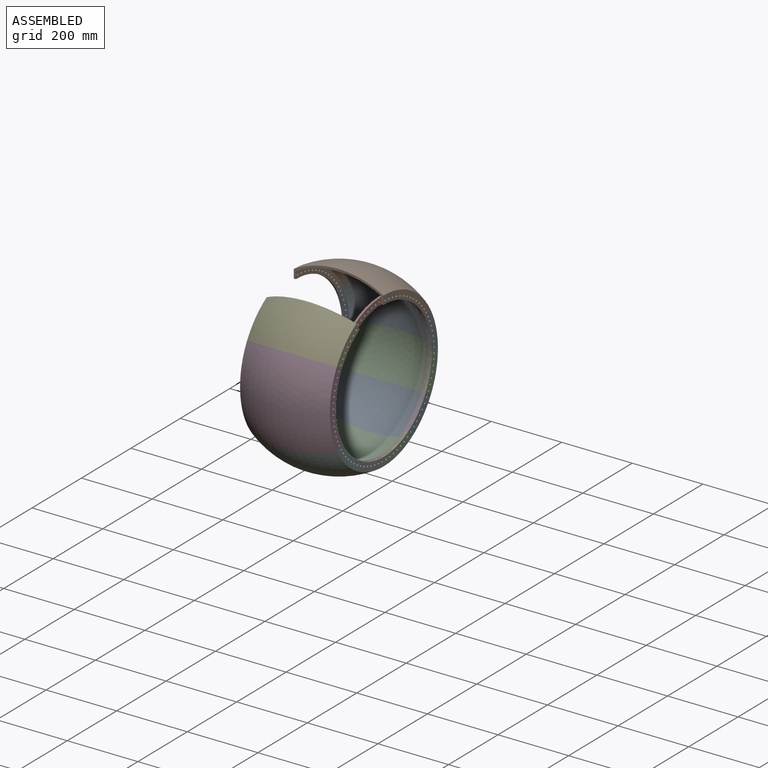
[diagram: assembled view]
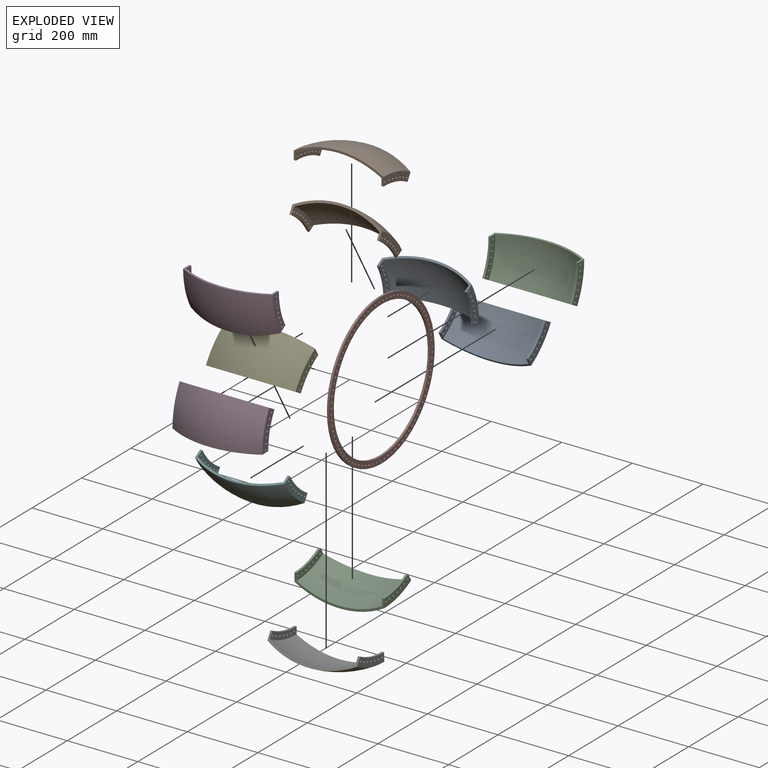
[diagram: exploded view]
GUIDED TOUR — MATED ASSEMBLY (Onshape document 5a2547cec210a63615275e33, AutoMate assembly 5a2547cec210a63615275e33_327c1e1383b4cbb6d8f0e685_7b2ea84203dd749612cd7b46_default)

This assembly has 12 components, labeled P0..P11 below (a component is one placed occurrence of a part; the same part can appear more than once), held together by 11 mates. A mate is a constraint between two components; its type names the relative motion it leaves free:
  FASTENED — locks the two components together rigidly (no relative motion),
  REVOLUTE — leaves rotation about the listed axis free (a hinge).
Axis/direction vectors are unit vectors and 'through' points are millimeter coordinates, both in the assembly's world frame.

MATES
  1. REVOLUTE "Revolute 1": P7 <-> P4, axis (1.000, 0.000, 0.000) through (3.56, -2.55, 637.05) mm
  2. FASTENED "Fastened 9": P3 <-> P11, direction (0.000, -0.007, 1.000) through (-244.44, -110.75, 467.99) mm
  3. FASTENED "Fastened 5": P8 <-> P10, direction (0.000, -0.862, -0.506) through (9.56, 200.37, 291.32) mm
  4. FASTENED "Fastened 2": P0 <-> P1, direction (0.000, -0.506, 0.862) through (9.56, 273.96, 574.03) mm
  5. FASTENED "Fastened 8": P5 <-> P3, direction (0.000, -0.506, 0.862) through (-244.44, -82.33, 364.90) mm
  6. FASTENED "Fastened 1": P2 <-> P0, direction (0.000, -0.007, 1.000) through (-238.44, 290.12, 470.86) mm
  7. FASTENED "Fastened 4": P2 <-> P8, direction (0.000, -0.494, -0.870) through (-244.44, 275.44, 367.47) mm
  8. FASTENED "Fastened 7": P6 <-> P5, direction (0.000, -0.870, 0.494) through (-244.44, -6.19, 289.84) mm
  9. FASTENED "Fastened 6": P10 <-> P6, direction (0.000, -1.000, -0.007) through (-244.44, 97.29, 262.91) mm
  10. FASTENED "Fastened 10": P11 <-> P4, direction (0.000, 0.494, 0.870) through (-244.44, -83.81, 571.46) mm
  11. FASTENED "Fastened 3": P1 <-> P9, direction (0.000, -0.870, 0.494) through (9.56, 197.81, 649.09) mm

ASSEMBLY ORDER
  1. P7 — the base component [order verified]
  2. P5 [order verified]
  3. P8 [order verified]
  4. P0 [order verified]
  5. P4 [order verified]
  6. P3 [order verified]
  7. P2 [order verified]
  8. P10 [order verified]
  9. P6 [order verified]
  10. P1 [order verified]
  11. P11 [order verified]
  12. P9 [order verified]
Order-tag legend:
  [order verified] — this step's position reverses a verified removal order: the component was checked to insert without passing through the ones already placed.

Of the 12 components, 12 carry the full construction recipe — the FeatureScript program that regenerates the part's solid from scratch; the rest are supplied as boundary geometry only.
Each toured component is shown spotlighted twice — in the assembled view, then in the exploded view, where a leader line traces a displaced component back to its assembled socket (saturated green if recipe-attached, orange if geometry-only; every other component desaturated gray) — followed by its recipe or geometry summary and the mates that hold it.
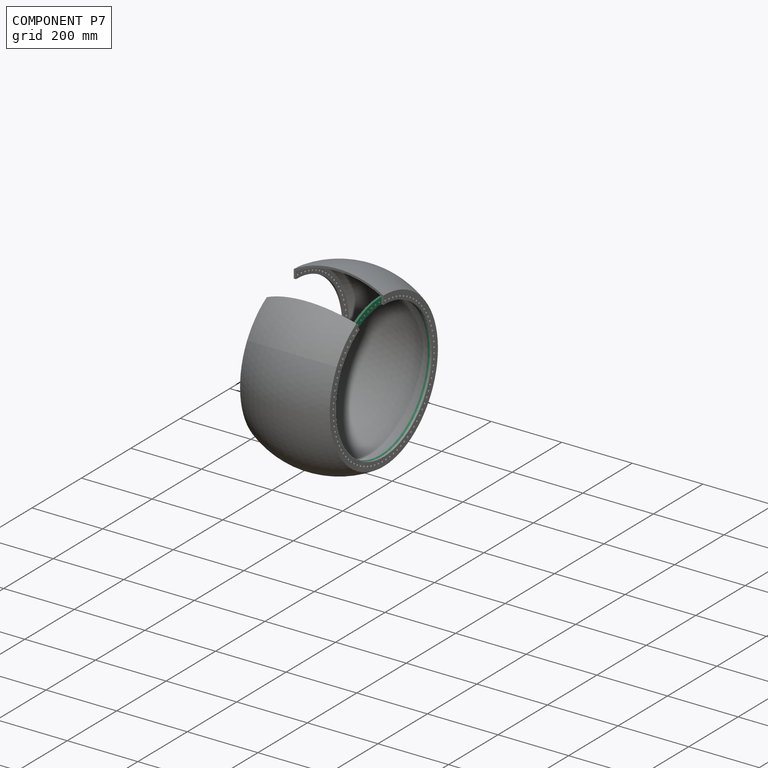
[diagram: component P7 — assembled]
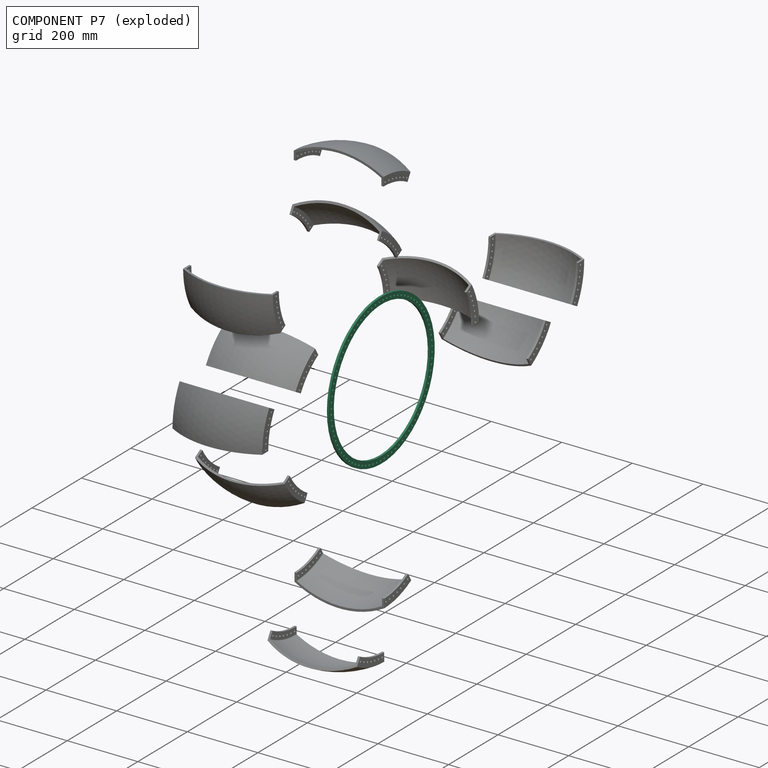
[diagram: component P7 — exploded]
COMPONENT P7 — recipe-attached (CADFS 00161219, mesh-verified: the recipe's output STEP matches this component's geometry to below the mesh-comparison resolution (tessellation chordal tolerance ~0.906 mm)).
Held by: REVOLUTE mate "Revolute 1" to P4.
Construction recipe (FeatureScript — the CAD program that rebuilds this solid; sketch coordinates are in the units given by the * unit suffixes, e.g. mm):

FeatureScript 1511;
import(path : "onshape/std/geometry.fs", version : "1511.0");
import(path : "onshape/std/common.fs", version : "1511.0");
const mm = millimeter;
const VERTEX = EntityType.VERTEX;
const EDGE = EntityType.EDGE;
const FACE = EntityType.FACE;
const BODY = EntityType.BODY;
function v(x, y){return vector(x, y);}
function OD(order){return orderDisambiguation(order);}
function OSD(set){return originalSetDisambiguation(set);}
function TD(topology){return topologyDisambiguation(topology);}
function TDD(query){return trueDependencyDisambiguation(query);}
function sQuery(a, b, c) {return sketchEntityQuery(a, b, c);}

annotation { "Feature Type Name" : "Feature", "Feature Type Description" : "" }
export const myFeature = defineFeature(function(context is Context, id is Id, definition is map)
    precondition{}
    {
        {
            var Q0;
            Q0=qCreatedBy(makeId("Top.planeOp"),FACE);
            var sketch = newSketch(context, id + "F0", { "sketchPlane" : qUnion([Q0])});
            skCircle(sketch, "E0", {"center": v(0, 0) * mm, "radius": 213.76 * mm});
            skCircle(sketch, "E1", {"center": v(0, 0) * mm, "radius": 194.32 * mm});
            skSolve(sketch);
        }
        {
            var Q0;
            Q0 = qSketchRegion(id + "F0", true);
            extrude(context, id + "F1", {"entities" : qUnion([Q0]), "depth" : 6 * mm});
        }
        {
            var Q0;
            Q0=makeQuery(id+"F1.opExtrude","CAP_FACE",FACE,{"disambiguationData":[OSD([sQuery(id+"F0.wireOp",EDGE,"E0"),sQuery(id+"F0.wireOp",EDGE,"E1")])],"isStart":false});
            var sketch = newSketch(context, id + "F2", { "sketchPlane" : qUnion([Q0])});
            skLineSegment(sketch, "E2", {"start": v(0, 194.32) * mm, "end": v(0, 204.04) * mm, "construction": true});
            skCircle(sketch, "E3", {"center": v(0, 204.04) * mm, "radius": 3 * mm});
            skCircle(sketch, "E4.1.0", {"center": v(-15.25, 203.47) * mm, "radius": 3 * mm});
            skCircle(sketch, "E4.2.0", {"center": v(-30.41, 201.76) * mm, "radius": 3 * mm});
            skCircle(sketch, "E4.3.0", {"center": v(-45.4, 198.92) * mm, "radius": 3 * mm});
            skCircle(sketch, "E4.4.0", {"center": v(-60.14, 194.97) * mm, "radius": 3 * mm});
            skCircle(sketch, "E4.5.0", {"center": v(-74.54, 189.93) * mm, "radius": 3 * mm});
            skCircle(sketch, "E4.6.0", {"center": v(-88.53, 183.83) * mm, "radius": 3 * mm});
            skCircle(sketch, "E4.7.0", {"center": v(-102.02, 176.7) * mm, "radius": 3 * mm});
            skCircle(sketch, "E4.8.0", {"center": v(-114.94, 168.58) * mm, "radius": 3 * mm});
            skCircle(sketch, "E4.9.0", {"center": v(-127.21, 159.52) * mm, "radius": 3 * mm});
            skCircle(sketch, "E4.10.0", {"center": v(-138.78, 149.57) * mm, "radius": 3 * mm});
            skCircle(sketch, "E4.11.0", {"center": v(-149.57, 138.78) * mm, "radius": 3 * mm});
            skCircle(sketch, "E4.12.0", {"center": v(-159.52, 127.21) * mm, "radius": 3 * mm});
            skCircle(sketch, "E4.13.0", {"center": v(-168.58, 114.94) * mm, "radius": 3 * mm});
            skCircle(sketch, "E4.14.0", {"center": v(-176.7, 102.02) * mm, "radius": 3 * mm});
            skCircle(sketch, "E4.15.0", {"center": v(-183.83, 88.53) * mm, "radius": 3 * mm});
            skCircle(sketch, "E4.16.0", {"center": v(-189.93, 74.54) * mm, "radius": 3 * mm});
            skCircle(sketch, "E4.17.0", {"center": v(-194.97, 60.14) * mm, "radius": 3 * mm});
            skCircle(sketch, "E4.18.0", {"center": v(-198.92, 45.4) * mm, "radius": 3 * mm});
            skCircle(sketch, "E4.19.0", {"center": v(-201.76, 30.41) * mm, "radius": 3 * mm});
            skCircle(sketch, "E4.20.0", {"center": v(-203.47, 15.25) * mm, "radius": 3 * mm});
            skCircle(sketch, "E4.21.0", {"center": v(-204.04, 0) * mm, "radius": 3 * mm});
            skCircle(sketch, "E4.22.0", {"center": v(-203.47, -15.25) * mm, "radius": 3 * mm});
            skCircle(sketch, "E4.23.0", {"center": v(-201.76, -30.41) * mm, "radius": 3 * mm});
            skCircle(sketch, "E4.24.0", {"center": v(-198.92, -45.4) * mm, "radius": 3 * mm});
            skCircle(sketch, "E4.25.0", {"center": v(-194.97, -60.14) * mm, "radius": 3 * mm});
            skCircle(sketch, "E4.26.0", {"center": v(-189.93, -74.54) * mm, "radius": 3 * mm});
            skCircle(sketch, "E4.27.0", {"center": v(-183.83, -88.53) * mm, "radius": 3 * mm});
            skCircle(sketch, "E4.28.0", {"center": v(-176.7, -102.02) * mm, "radius": 3 * mm});
            skCircle(sketch, "E4.29.0", {"center": v(-168.58, -114.94) * mm, "radius": 3 * mm});
            skCircle(sketch, "E4.30.0", {"center": v(-159.52, -127.21) * mm, "radius": 3 * mm});
            skCircle(sketch, "E4.31.0", {"center": v(-149.57, -138.78) * mm, "radius": 3 * mm});
            skCircle(sketch, "E4.32.0", {"center": v(-138.78, -149.57) * mm, "radius": 3 * mm});
            skCircle(sketch, "E4.33.0", {"center": v(-127.21, -159.52) * mm, "radius": 3 * mm});
            skCircle(sketch, "E4.34.0", {"center": v(-114.94, -168.58) * mm, "radius": 3 * mm});
            skCircle(sketch, "E4.35.0", {"center": v(-102.02, -176.7) * mm, "radius": 3 * mm});
            skCircle(sketch, "E4.36.0", {"center": v(-88.53, -183.83) * mm, "radius": 3 * mm});
            skCircle(sketch, "E4.37.0", {"center": v(-74.54, -189.93) * mm, "radius": 3 * mm});
            skCircle(sketch, "E4.38.0", {"center": v(-60.14, -194.97) * mm, "radius": 3 * mm});
            skCircle(sketch, "E4.39.0", {"center": v(-45.4, -198.92) * mm, "radius": 3 * mm});
            skCircle(sketch, "E4.40.0", {"center": v(-30.41, -201.76) * mm, "radius": 3 * mm});
            skCircle(sketch, "E4.41.0", {"center": v(-15.25, -203.47) * mm, "radius": 3 * mm});
            skCircle(sketch, "E4.42.0", {"center": v(0, -204.04) * mm, "radius": 3 * mm});
            skCircle(sketch, "E4.43.0", {"center": v(15.25, -203.47) * mm, "radius": 3 * mm});
            skCircle(sketch, "E4.44.0", {"center": v(30.41, -201.76) * mm, "radius": 3 * mm});
            skCircle(sketch, "E4.45.0", {"center": v(45.4, -198.92) * mm, "radius": 3 * mm});
            skCircle(sketch, "E4.46.0", {"center": v(60.14, -194.97) * mm, "radius": 3 * mm});
            skCircle(sketch, "E4.47.0", {"center": v(74.54, -189.93) * mm, "radius": 3 * mm});
            skCircle(sketch, "E4.48.0", {"center": v(88.53, -183.83) * mm, "radius": 3 * mm});
            skCircle(sketch, "E4.49.0", {"center": v(102.02, -176.7) * mm, "radius": 3 * mm});
            skCircle(sketch, "E4.50.0", {"center": v(114.94, -168.58) * mm, "radius": 3 * mm});
            skCircle(sketch, "E4.51.0", {"center": v(127.21, -159.52) * mm, "radius": 3 * mm});
            skCircle(sketch, "E4.52.0", {"center": v(138.78, -149.57) * mm, "radius": 3 * mm});
            skCircle(sketch, "E4.53.0", {"center": v(149.57, -138.78) * mm, "radius": 3 * mm});
            skCircle(sketch, "E4.54.0", {"center": v(159.52, -127.21) * mm, "radius": 3 * mm});
            skCircle(sketch, "E4.55.0", {"center": v(168.58, -114.94) * mm, "radius": 3 * mm});
            skCircle(sketch, "E4.56.0", {"center": v(176.7, -102.02) * mm, "radius": 3 * mm});
            skCircle(sketch, "E4.57.0", {"center": v(183.83, -88.53) * mm, "radius": 3 * mm});
            skCircle(sketch, "E4.58.0", {"center": v(189.93, -74.54) * mm, "radius": 3 * mm});
            skCircle(sketch, "E4.59.0", {"center": v(194.97, -60.14) * mm, "radius": 3 * mm});
            skCircle(sketch, "E4.60.0", {"center": v(198.92, -45.4) * mm, "radius": 3 * mm});
            skCircle(sketch, "E4.61.0", {"center": v(201.76, -30.41) * mm, "radius": 3 * mm});
            skCircle(sketch, "E4.62.0", {"center": v(203.47, -15.25) * mm, "radius": 3 * mm});
            skCircle(sketch, "E4.63.0", {"center": v(204.04, 0) * mm, "radius": 3 * mm});
            skCircle(sketch, "E4.64.0", {"center": v(203.47, 15.25) * mm, "radius": 3 * mm});
            skCircle(sketch, "E4.65.0", {"center": v(201.76, 30.41) * mm, "radius": 3 * mm});
            skCircle(sketch, "E4.66.0", {"center": v(198.92, 45.4) * mm, "radius": 3 * mm});
            skCircle(sketch, "E4.67.0", {"center": v(194.97, 60.14) * mm, "radius": 3 * mm});
            skCircle(sketch, "E4.68.0", {"center": v(189.93, 74.54) * mm, "radius": 3 * mm});
            skCircle(sketch, "E4.69.0", {"center": v(183.83, 88.53) * mm, "radius": 3 * mm});
            skCircle(sketch, "E4.70.0", {"center": v(176.7, 102.02) * mm, "radius": 3 * mm});
            skCircle(sketch, "E4.71.0", {"center": v(168.58, 114.94) * mm, "radius": 3 * mm});
            skCircle(sketch, "E4.72.0", {"center": v(159.52, 127.21) * mm, "radius": 3 * mm});
            skCircle(sketch, "E4.73.0", {"center": v(149.57, 138.78) * mm, "radius": 3 * mm});
            skCircle(sketch, "E4.74.0", {"center": v(138.78, 149.57) * mm, "radius": 3 * mm});
            skCircle(sketch, "E4.75.0", {"center": v(127.21, 159.52) * mm, "radius": 3 * mm});
            skCircle(sketch, "E4.76.0", {"center": v(114.94, 168.58) * mm, "radius": 3 * mm});
            skCircle(sketch, "E4.77.0", {"center": v(102.02, 176.7) * mm, "radius": 3 * mm});
            skCircle(sketch, "E4.78.0", {"center": v(88.53, 183.83) * mm, "radius": 3 * mm});
            skCircle(sketch, "E4.79.0", {"center": v(74.54, 189.93) * mm, "radius": 3 * mm});
            skCircle(sketch, "E4.80.0", {"center": v(60.14, 194.97) * mm, "radius": 3 * mm});
            skCircle(sketch, "E4.81.0", {"center": v(45.4, 198.92) * mm, "radius": 3 * mm});
            skCircle(sketch, "E4.82.0", {"center": v(30.41, 201.76) * mm, "radius": 3 * mm});
            skCircle(sketch, "E4.83.0", {"center": v(15.25, 203.47) * mm, "radius": 3 * mm});
            skPoint(sketch, "E4.center", {"position": v(0, 0) * mm});
            skPoint(sketch, "E5", {"position": v(0, 194.32) * mm});
            skLineSegment(sketch, "E6", {"start": v(0, 0) * mm, "end": v(0, 194.32) * mm});
            skLineSegment(sketch, "E7", {"start": v(-0.32, 0.72) * mm, "end": v(15.25, 203.47) * mm});
            skPoint(sketch, "E8.1.0", {"position": v(7.44, 194.17) * mm});
            skLineSegment(sketch, "E8.anchor1", {"start": v(0, 0) * mm, "end": v(0, 194.32) * mm, "construction": true});
            skLineSegment(sketch, "E8.anchor2", {"start": v(0, 0) * mm, "end": v(7.44, 194.17) * mm, "construction": true});
            skSolve(sketch);
        }
        {
            var Q0;
            Q0 = qSketchRegion(id + "F2", true);
            extrude(context, id + "F3", {"entities" : qUnion([Q0]), "operationType" : NewBodyOperationType.REMOVE, "endBound" : BoundingType.THROUGH_ALL, "oppositeDirection" : true, "depth" : 25 * mm});
        }
    });
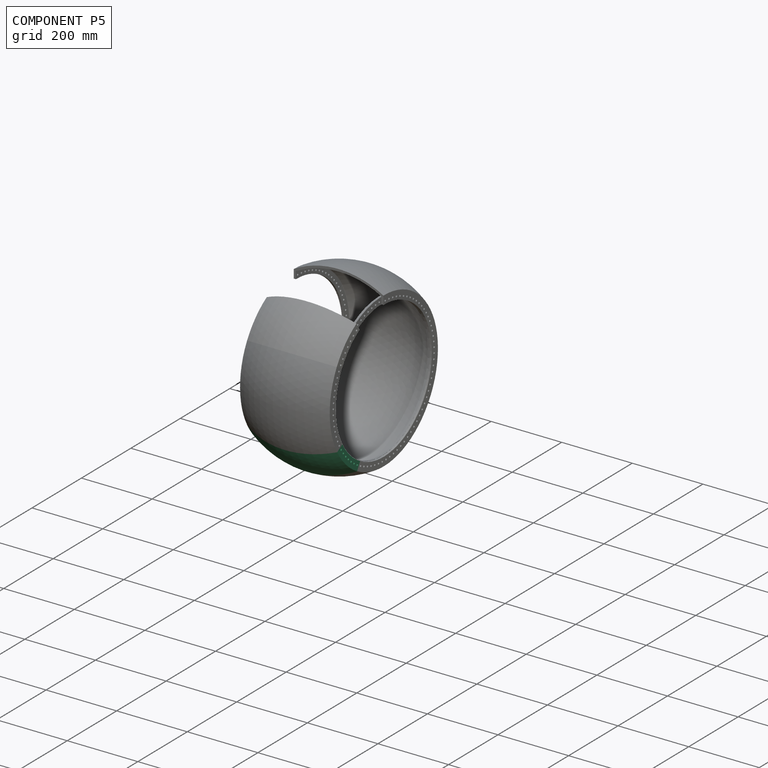
[diagram: component P5 — assembled]
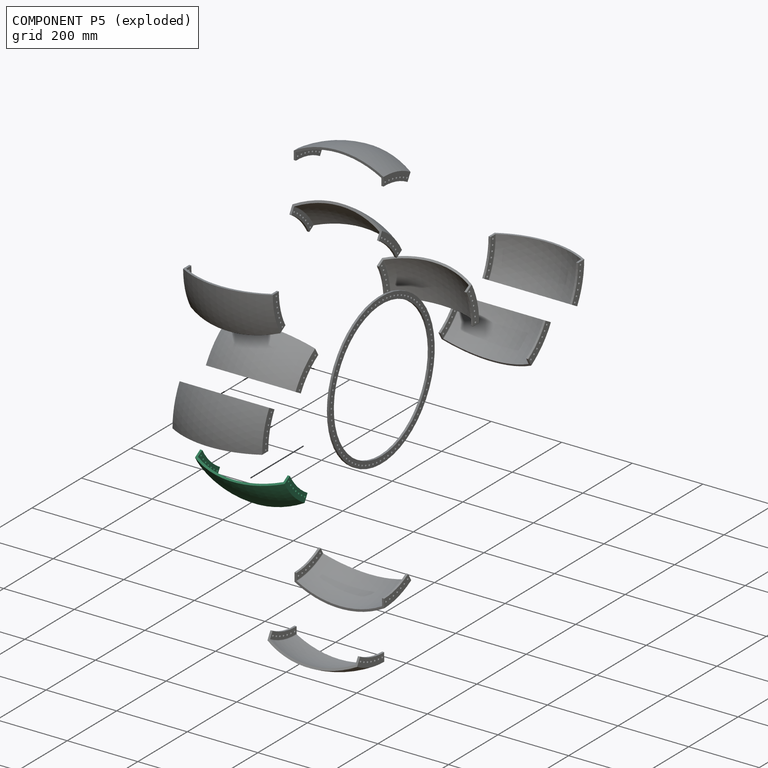
[diagram: component P5 — exploded]
COMPONENT P5 — same part as P0 (CADFS 00161216); its construction recipe is shown at P0.
Held by: FASTENED mate "Fastened 8" to P3; FASTENED mate "Fastened 7" to P6.
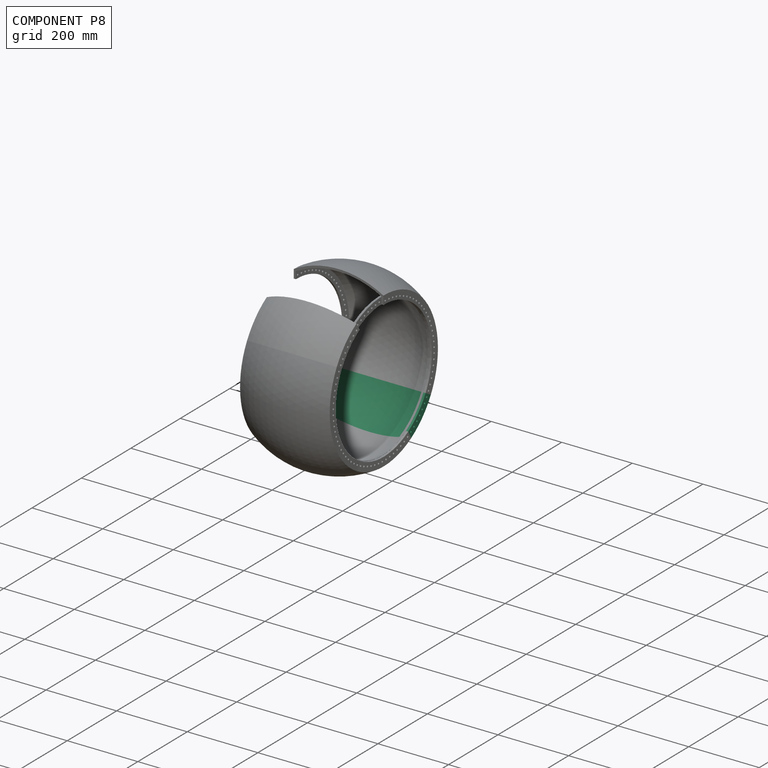
[diagram: component P8 — assembled]
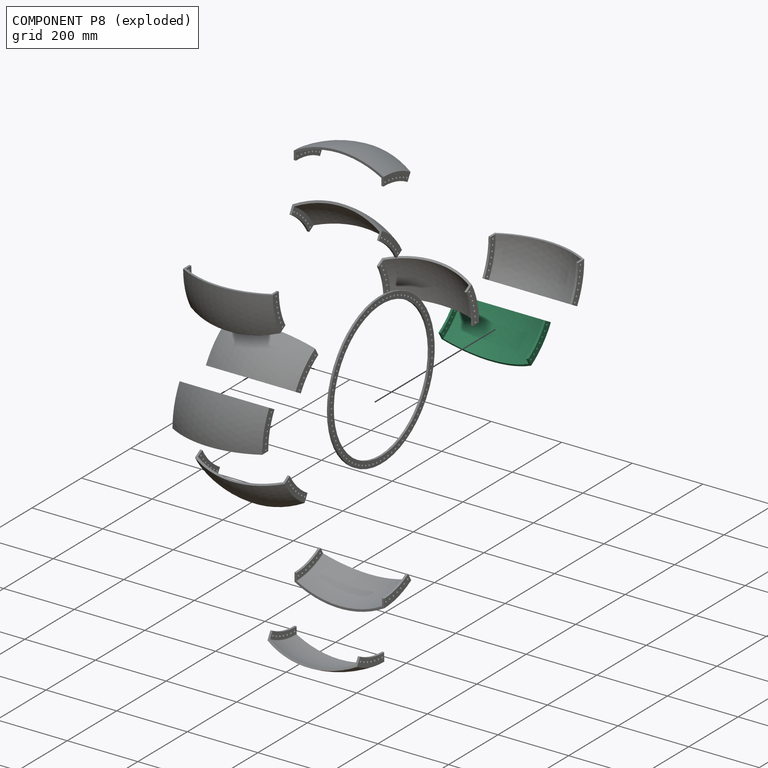
[diagram: component P8 — exploded]
COMPONENT P8 — same part as P0 (CADFS 00161216); its construction recipe is shown at P0.
Held by: FASTENED mate "Fastened 5" to P10; FASTENED mate "Fastened 4" to P2.
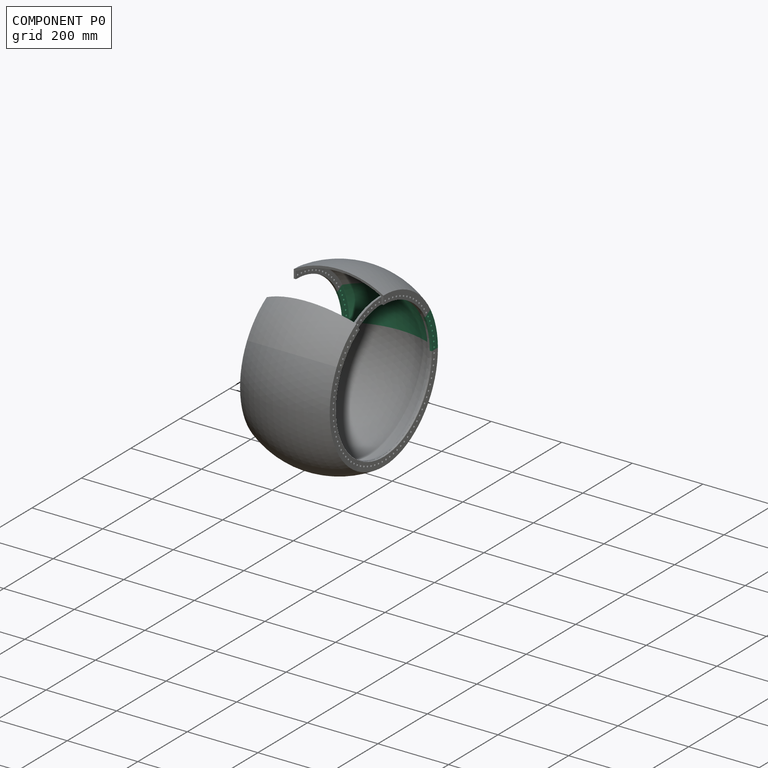
[diagram: component P0 — assembled]
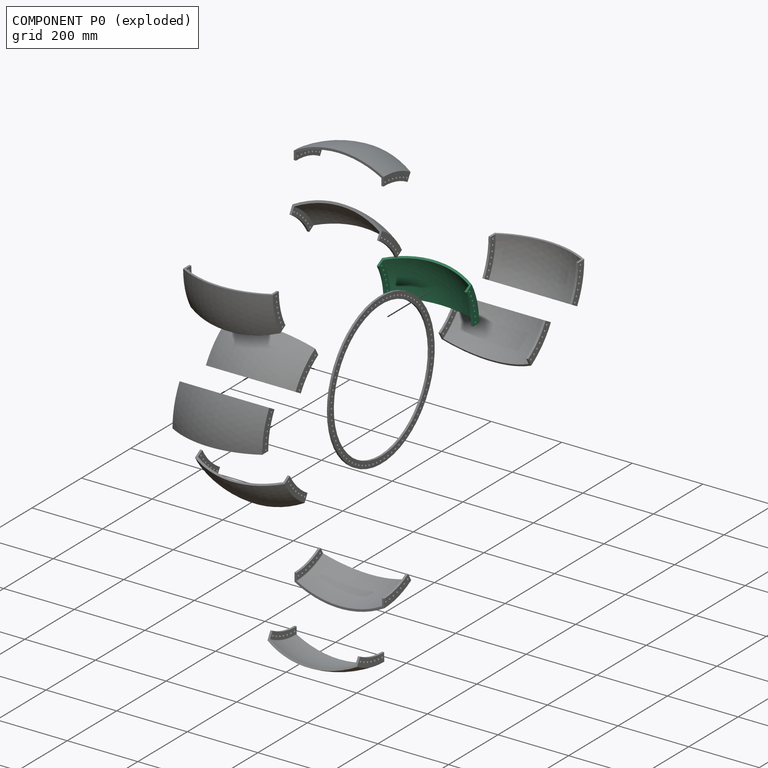
[diagram: component P0 — exploded]
COMPONENT P0 — recipe-attached (CADFS 00161216, mesh-verified: the recipe's output STEP matches this component's geometry to below the mesh-comparison resolution (tessellation chordal tolerance ~0.444 mm)).
Held by: FASTENED mate "Fastened 2" to P1; FASTENED mate "Fastened 1" to P2.
Construction recipe (FeatureScript — the CAD program that rebuilds this solid; sketch coordinates are in the units given by the * unit suffixes, e.g. mm):

FeatureScript 1511;
import(path : "onshape/std/geometry.fs", version : "1511.0");
import(path : "onshape/std/common.fs", version : "1511.0");
const mm = millimeter;
const VERTEX = EntityType.VERTEX;
const EDGE = EntityType.EDGE;
const FACE = EntityType.FACE;
const BODY = EntityType.BODY;
function v(x, y){return vector(x, y);}
function OD(order){return orderDisambiguation(order);}
function OSD(set){return originalSetDisambiguation(set);}
function TD(topology){return topologyDisambiguation(topology);}
function TDD(query){return trueDependencyDisambiguation(query);}
function sQuery(a, b, c) {return sketchEntityQuery(a, b, c);}

annotation { "Feature Type Name" : "Feature", "Feature Type Description" : "" }
export const myFeature = defineFeature(function(context is Context, id is Id, definition is map)
    precondition{}
    {
        {
            var Q0;
            Q0=qCreatedBy(makeId("Top.planeOp"),FACE);
            var sketch = newSketch(context, id + "F0", { "sketchPlane" : qUnion([Q0])});
            skArc(sketch, "E0", {"start": v(127, 218.81) * mm, "mid": v(0, 253) * mm, "end": v(-127, 218.81) * mm});
            skLineSegment(sketch, "E1", {"start": v(0, 253) * mm, "end": v(127, 253) * mm, "construction": true});
            skLineSegment(sketch, "E2", {"start": v(127, 253) * mm, "end": v(127, 218.81) * mm, "construction": true});
            skLineSegment(sketch, "E3", {"start": v(127, 218.81) * mm, "end": v(127, 194.31) * mm});
            skLineSegment(sketch, "E4", {"start": v(127, 194.31) * mm, "end": v(121, 194.31) * mm});
            skLineSegment(sketch, "E5", {"start": v(121, 194.31) * mm, "end": v(121, 214.93) * mm});
            skLineSegment(sketch, "E6.MirrorCS", {"start": v(-121, 194.31) * mm, "end": v(-121, 214.93) * mm});
            skLineSegment(sketch, "E7.MirrorCS", {"start": v(-127, 218.81) * mm, "end": v(-127, 194.31) * mm});
            skLineSegment(sketch, "E8.MirrorCS", {"start": v(-127, 194.31) * mm, "end": v(-121, 194.31) * mm});
            skPoint(sketch, "E9.MirrorCS.end.orphan", {"position": v(-127, 218.81) * mm});
            skPoint(sketch, "E9.MirrorCS.start.orphan", {"position": v(-127, 253) * mm});
            skPoint(sketch, "E10.MirrorCS.start.orphan", {"position": v(0, 253) * mm});
            skLineSegment(sketch, "E11", {"start": v(0, 0) * mm, "end": v(139.33, 0) * mm, "construction": true});
            skLineSegment(sketch, "E12", {"start": v(0, 253) * mm, "end": v(0, 246.65) * mm});
            skPoint(sketch, "E13.orphan", {"position": v(121, 210.73) * mm});
            skPoint(sketch, "E14.orphan", {"position": v(-121, 210.73) * mm});
            skArc(sketch, "E15.trimOffspring", {"start": v(121, 214.93) * mm, "mid": v(0, 246.65) * mm, "end": v(-121, 214.93) * mm});
            skSolve(sketch);
        }
        {
            var Q0;
            Q0=qSketchRegion(id+"F0",true);
            var Q1;
            Q1=sQuery(id+"F0.wireOp",EDGE,"E11");
            revolve(context, id + "F1", {"entities" : qUnion([Q0]), "axis" : qUnion([Q1]), "revolveType" : RevolveType.ONE_DIRECTION, "angle" : 30 * degree});
        }
        {
            var Q0;
            Q0=makeQuery(id+"F1.opRevolve","SWEPT_EDGE",EDGE,{"disambiguationData":[OSD([sQuery(id+"F0.wireOp",EDGE,"E5"),sQuery(id+"F0.wireOp",EDGE,"E15.trimOffspring")])]});
            fillet(context, id + "F2", {"entities" : qUnion([Q0]), "radius" : 2 * mm, "tangentPropagation" : true, "allowEdgeOverflow" : false});
        }
        {
            var Q0;
            Q0=makeQuery(id+"F1.opRevolve","SWEPT_EDGE",EDGE,{"disambiguationData":[OSD([sQuery(id+"F0.wireOp",EDGE,"E6.MirrorCS"),sQuery(id+"F0.wireOp",EDGE,"E15.trimOffspring")])]});
            fillet(context, id + "F3", {"entities" : qUnion([Q0]), "radius" : 2 * mm, "tangentPropagation" : true, "allowEdgeOverflow" : false});
        }
        {
            var Q0;
            Q0=makeQuery(id+"F1.opRevolve","SWEPT_FACE",FACE,{"disambiguationData":[OSD([sQuery(id+"F0.wireOp",EDGE,"E7.MirrorCS")])]});
            var sketch = newSketch(context, id + "F4", { "sketchPlane" : qUnion([Q0])});
            skLineSegment(sketch, "E16", {"start": v(-218.81, 0) * mm, "end": v(0, 0) * mm});
            skLineSegment(sketch, "E17", {"start": v(-194.31, 0) * mm, "end": v(-194.17, 7.63) * mm});
            skLineSegment(sketch, "E18", {"start": v(-218.81, 0) * mm, "end": v(-194.31, 0) * mm});
            skLineSegment(sketch, "E19.1.0", {"start": v(-218.67, 8.35) * mm, "end": v(-194.19, 7.44) * mm});
            skPoint(sketch, "E19.center", {"position": v(4.56, 0.27) * mm});
            skLineSegment(sketch, "E19.anchor1", {"start": v(4.56, 0.27) * mm, "end": v(-218.81, 0) * mm, "construction": true});
            skLineSegment(sketch, "E19.anchor2", {"start": v(4.56, 0.27) * mm, "end": v(-218.67, 8.35) * mm, "construction": true});
            skLineSegment(sketch, "E20", {"start": v(-194.17, 7.63) * mm, "end": v(-203.94, 7.82) * mm});
            skCircle(sketch, "E21", {"center": v(-203.94, 7.82) * mm, "radius": 3 * mm});
            skCircle(sketch, "E22.1.0", {"center": v(-203.95, -7.44) * mm, "radius": 3 * mm});
            skCircle(sketch, "E22.2.0", {"center": v(-202.82, -22.66) * mm, "radius": 3 * mm});
            skCircle(sketch, "E22.3.0", {"center": v(-200.56, -37.76) * mm, "radius": 3 * mm});
            skCircle(sketch, "E22.4.0", {"center": v(-197.18, -52.64) * mm, "radius": 3 * mm});
            skCircle(sketch, "E22.5.0", {"center": v(-192.7, -67.23) * mm, "radius": 3 * mm});
            skCircle(sketch, "E22.6.0", {"center": v(-187.13, -81.44) * mm, "radius": 3 * mm});
            skCircle(sketch, "E22.7.0", {"center": v(-180.52, -95.2) * mm, "radius": 3 * mm});
            skCircle(sketch, "E22.8.0", {"center": v(-172.9, -108.42) * mm, "radius": 3 * mm});
            skCircle(sketch, "E22.9.0", {"center": v(-164.32, -121.04) * mm, "radius": 3 * mm});
            skCircle(sketch, "E22.10.0", {"center": v(-154.81, -132.98) * mm, "radius": 3 * mm});
            skCircle(sketch, "E22.11.0", {"center": v(-144.44, -144.18) * mm, "radius": 3 * mm});
            skCircle(sketch, "E22.12.0", {"center": v(-133.27, -154.57) * mm, "radius": 3 * mm});
            skCircle(sketch, "E22.13.0", {"center": v(-121.34, -164.1) * mm, "radius": 3 * mm});
            skCircle(sketch, "E22.14.0", {"center": v(-108.74, -172.7) * mm, "radius": 3 * mm});
            skCircle(sketch, "E22.15.0", {"center": v(-95.53, -180.35) * mm, "radius": 3 * mm});
            skCircle(sketch, "E22.16.0", {"center": v(-81.78, -186.98) * mm, "radius": 3 * mm});
            skCircle(sketch, "E22.17.0", {"center": v(-67.58, -192.57) * mm, "radius": 3 * mm});
            skCircle(sketch, "E22.18.0", {"center": v(-53, -197.08) * mm, "radius": 3 * mm});
            skCircle(sketch, "E22.19.0", {"center": v(-38.13, -200.5) * mm, "radius": 3 * mm});
            skCircle(sketch, "E22.20.0", {"center": v(-23.04, -202.78) * mm, "radius": 3 * mm});
            skCircle(sketch, "E22.21.0", {"center": v(-7.82, -203.94) * mm, "radius": 3 * mm});
            skCircle(sketch, "E22.22.0", {"center": v(7.44, -203.95) * mm, "radius": 3 * mm});
            skCircle(sketch, "E22.23.0", {"center": v(22.66, -202.82) * mm, "radius": 3 * mm});
            skCircle(sketch, "E22.24.0", {"center": v(37.76, -200.56) * mm, "radius": 3 * mm});
            skCircle(sketch, "E22.25.0", {"center": v(52.64, -197.18) * mm, "radius": 3 * mm});
            skCircle(sketch, "E22.26.0", {"center": v(67.23, -192.7) * mm, "radius": 3 * mm});
            skCircle(sketch, "E22.27.0", {"center": v(81.44, -187.13) * mm, "radius": 3 * mm});
            skCircle(sketch, "E22.28.0", {"center": v(95.2, -180.52) * mm, "radius": 3 * mm});
            skCircle(sketch, "E22.29.0", {"center": v(108.42, -172.9) * mm, "radius": 3 * mm});
            skCircle(sketch, "E22.30.0", {"center": v(121.04, -164.32) * mm, "radius": 3 * mm});
            skCircle(sketch, "E22.31.0", {"center": v(132.98, -154.81) * mm, "radius": 3 * mm});
            skCircle(sketch, "E22.32.0", {"center": v(144.18, -144.44) * mm, "radius": 3 * mm});
            skCircle(sketch, "E22.33.0", {"center": v(154.57, -133.27) * mm, "radius": 3 * mm});
            skCircle(sketch, "E22.34.0", {"center": v(164.1, -121.34) * mm, "radius": 3 * mm});
            skCircle(sketch, "E22.35.0", {"center": v(172.7, -108.74) * mm, "radius": 3 * mm});
            skCircle(sketch, "E22.36.0", {"center": v(180.35, -95.53) * mm, "radius": 3 * mm});
            skCircle(sketch, "E22.37.0", {"center": v(186.98, -81.78) * mm, "radius": 3 * mm});
            skCircle(sketch, "E22.38.0", {"center": v(192.57, -67.58) * mm, "radius": 3 * mm});
            skCircle(sketch, "E22.39.0", {"center": v(197.08, -53) * mm, "radius": 3 * mm});
            skCircle(sketch, "E22.40.0", {"center": v(200.5, -38.13) * mm, "radius": 3 * mm});
            skCircle(sketch, "E22.41.0", {"center": v(202.78, -23.04) * mm, "radius": 3 * mm});
            skCircle(sketch, "E22.42.0", {"center": v(203.94, -7.82) * mm, "radius": 3 * mm});
            skCircle(sketch, "E22.43.0", {"center": v(203.95, 7.44) * mm, "radius": 3 * mm});
            skCircle(sketch, "E22.44.0", {"center": v(202.82, 22.66) * mm, "radius": 3 * mm});
            skCircle(sketch, "E22.45.0", {"center": v(200.56, 37.76) * mm, "radius": 3 * mm});
            skCircle(sketch, "E22.46.0", {"center": v(197.18, 52.64) * mm, "radius": 3 * mm});
            skCircle(sketch, "E22.47.0", {"center": v(192.7, 67.23) * mm, "radius": 3 * mm});
            skCircle(sketch, "E22.48.0", {"center": v(187.13, 81.44) * mm, "radius": 3 * mm});
            skCircle(sketch, "E22.49.0", {"center": v(180.52, 95.2) * mm, "radius": 3 * mm});
            skCircle(sketch, "E22.50.0", {"center": v(172.9, 108.42) * mm, "radius": 3 * mm});
            skCircle(sketch, "E22.51.0", {"center": v(164.32, 121.04) * mm, "radius": 3 * mm});
            skCircle(sketch, "E22.52.0", {"center": v(154.81, 132.98) * mm, "radius": 3 * mm});
            skCircle(sketch, "E22.53.0", {"center": v(144.44, 144.18) * mm, "radius": 3 * mm});
            skCircle(sketch, "E22.54.0", {"center": v(133.27, 154.57) * mm, "radius": 3 * mm});
            skCircle(sketch, "E22.55.0", {"center": v(121.34, 164.1) * mm, "radius": 3 * mm});
            skCircle(sketch, "E22.56.0", {"center": v(108.74, 172.7) * mm, "radius": 3 * mm});
            skCircle(sketch, "E22.57.0", {"center": v(95.53, 180.35) * mm, "radius": 3 * mm});
            skCircle(sketch, "E22.58.0", {"center": v(81.78, 186.98) * mm, "radius": 3 * mm});
            skCircle(sketch, "E22.59.0", {"center": v(67.58, 192.57) * mm, "radius": 3 * mm});
            skCircle(sketch, "E22.60.0", {"center": v(53, 197.08) * mm, "radius": 3 * mm});
            skCircle(sketch, "E22.61.0", {"center": v(38.13, 200.5) * mm, "radius": 3 * mm});
            skCircle(sketch, "E22.62.0", {"center": v(23.04, 202.78) * mm, "radius": 3 * mm});
            skCircle(sketch, "E22.63.0", {"center": v(7.82, 203.94) * mm, "radius": 3 * mm});
            skCircle(sketch, "E22.64.0", {"center": v(-7.44, 203.95) * mm, "radius": 3 * mm});
            skCircle(sketch, "E22.65.0", {"center": v(-22.66, 202.82) * mm, "radius": 3 * mm});
            skCircle(sketch, "E22.66.0", {"center": v(-37.76, 200.56) * mm, "radius": 3 * mm});
            skCircle(sketch, "E22.67.0", {"center": v(-52.64, 197.18) * mm, "radius": 3 * mm});
            skCircle(sketch, "E22.68.0", {"center": v(-67.23, 192.7) * mm, "radius": 3 * mm});
            skCircle(sketch, "E22.69.0", {"center": v(-81.44, 187.13) * mm, "radius": 3 * mm});
            skCircle(sketch, "E22.70.0", {"center": v(-95.2, 180.52) * mm, "radius": 3 * mm});
            skCircle(sketch, "E22.71.0", {"center": v(-108.42, 172.9) * mm, "radius": 3 * mm});
            skCircle(sketch, "E22.72.0", {"center": v(-121.04, 164.32) * mm, "radius": 3 * mm});
            skCircle(sketch, "E22.73.0", {"center": v(-132.98, 154.81) * mm, "radius": 3 * mm});
            skCircle(sketch, "E22.74.0", {"center": v(-144.18, 144.44) * mm, "radius": 3 * mm});
            skCircle(sketch, "E22.75.0", {"center": v(-154.57, 133.27) * mm, "radius": 3 * mm});
            skCircle(sketch, "E22.76.0", {"center": v(-164.1, 121.34) * mm, "radius": 3 * mm});
            skCircle(sketch, "E22.77.0", {"center": v(-172.7, 108.74) * mm, "radius": 3 * mm});
            skCircle(sketch, "E22.78.0", {"center": v(-180.35, 95.53) * mm, "radius": 3 * mm});
            skCircle(sketch, "E22.79.0", {"center": v(-186.98, 81.78) * mm, "radius": 3 * mm});
            skCircle(sketch, "E22.80.0", {"center": v(-192.57, 67.58) * mm, "radius": 3 * mm});
            skCircle(sketch, "E22.81.0", {"center": v(-197.08, 53) * mm, "radius": 3 * mm});
            skCircle(sketch, "E22.82.0", {"center": v(-200.5, 38.13) * mm, "radius": 3 * mm});
            skCircle(sketch, "E22.83.0", {"center": v(-202.78, 23.04) * mm, "radius": 3 * mm});
            skPoint(sketch, "E22.center", {"position": v(0, 0) * mm});
            skLineSegment(sketch, "E23", {"start": v(0, 0) * mm, "end": v(-200.5, 38.13) * mm});
            skLineSegment(sketch, "E24", {"start": v(0, 0) * mm, "end": v(-202.78, 23.04) * mm});
            skSolve(sketch);
        }
        {
            var Q0;
            Q0 = qSketchRegion(id + "F4", true);
            extrude(context, id + "F5", {"entities" : qUnion([Q0]), "operationType" : NewBodyOperationType.REMOVE, "endBound" : BoundingType.THROUGH_ALL, "oppositeDirection" : true, "depth" : 25 * mm});
        }
    });
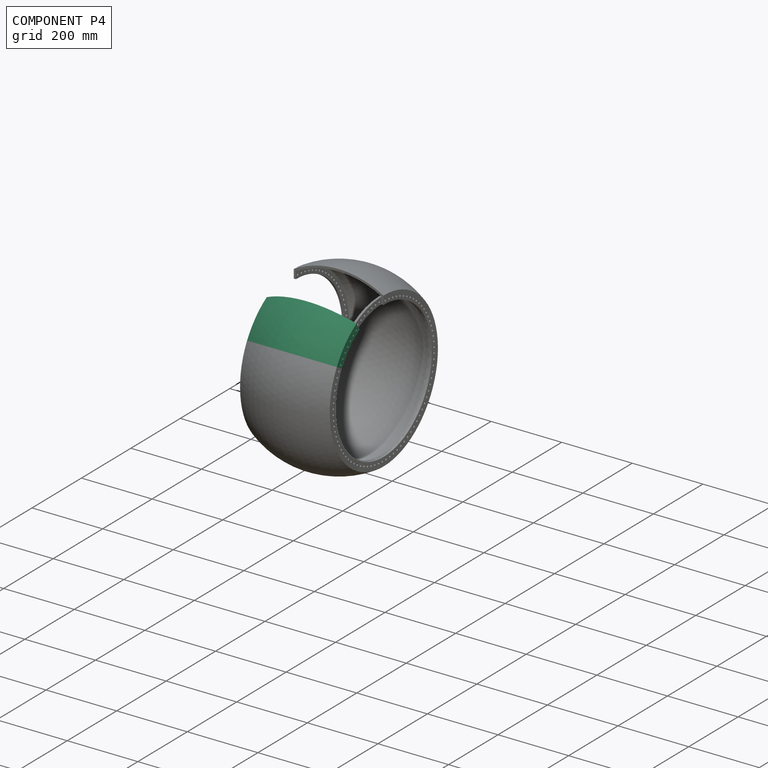
[diagram: component P4 — assembled]
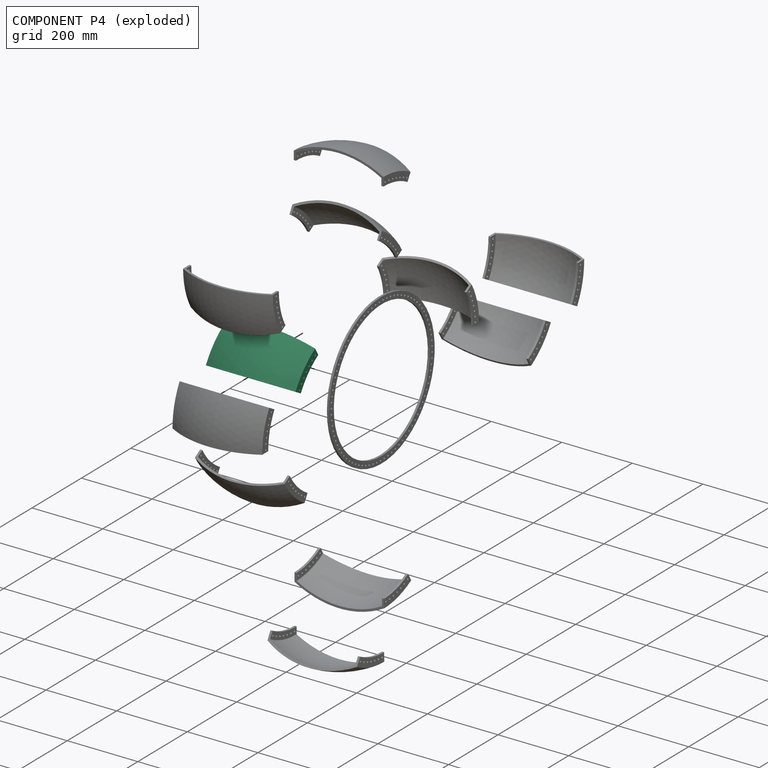
[diagram: component P4 — exploded]
COMPONENT P4 — same part as P0 (CADFS 00161216); its construction recipe is shown at P0.
Held by: REVOLUTE mate "Revolute 1" to P7; FASTENED mate "Fastened 10" to P11.
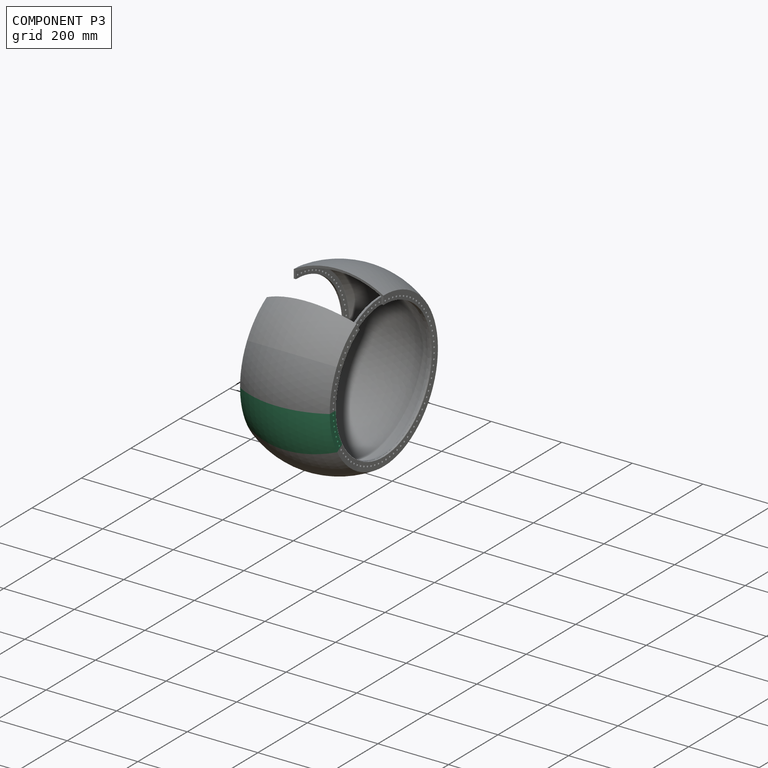
[diagram: component P3 — assembled]
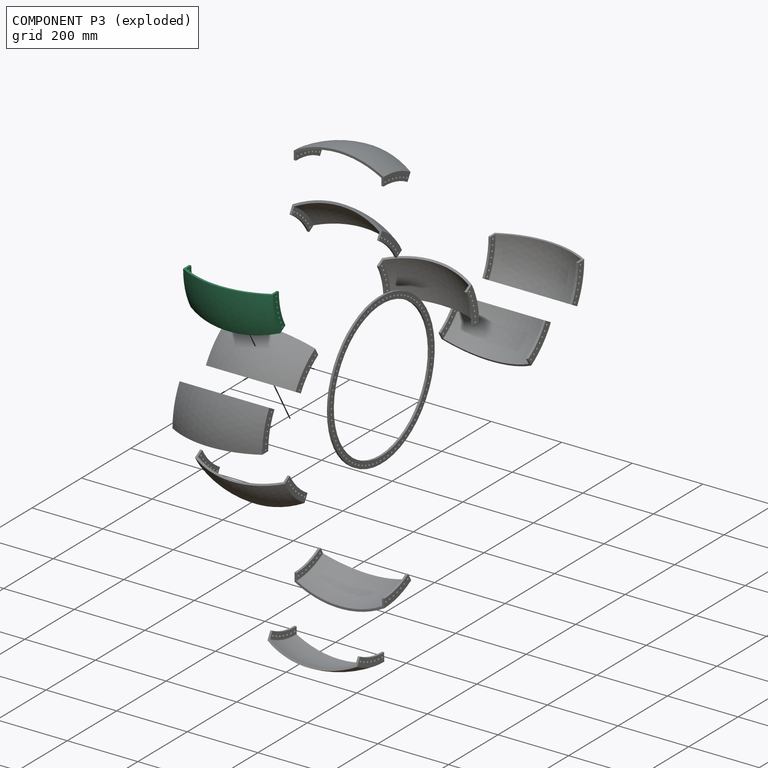
[diagram: component P3 — exploded]
COMPONENT P3 — same part as P0 (CADFS 00161216); its construction recipe is shown at P0.
Held by: FASTENED mate "Fastened 9" to P11; FASTENED mate "Fastened 8" to P5.
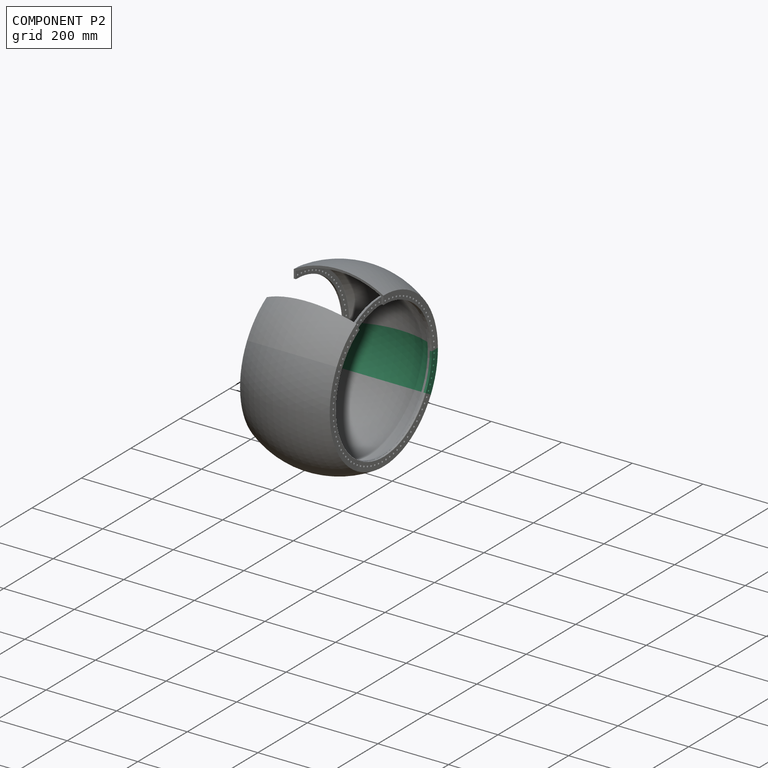
[diagram: component P2 — assembled]
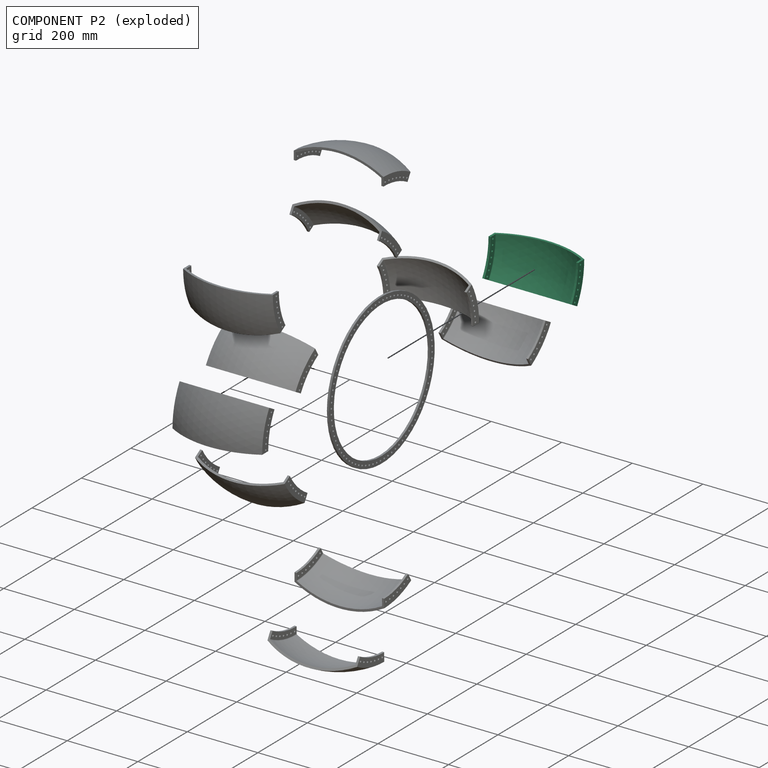
[diagram: component P2 — exploded]
COMPONENT P2 — same part as P0 (CADFS 00161216); its construction recipe is shown at P0.
Held by: FASTENED mate "Fastened 1" to P0; FASTENED mate "Fastened 4" to P8.
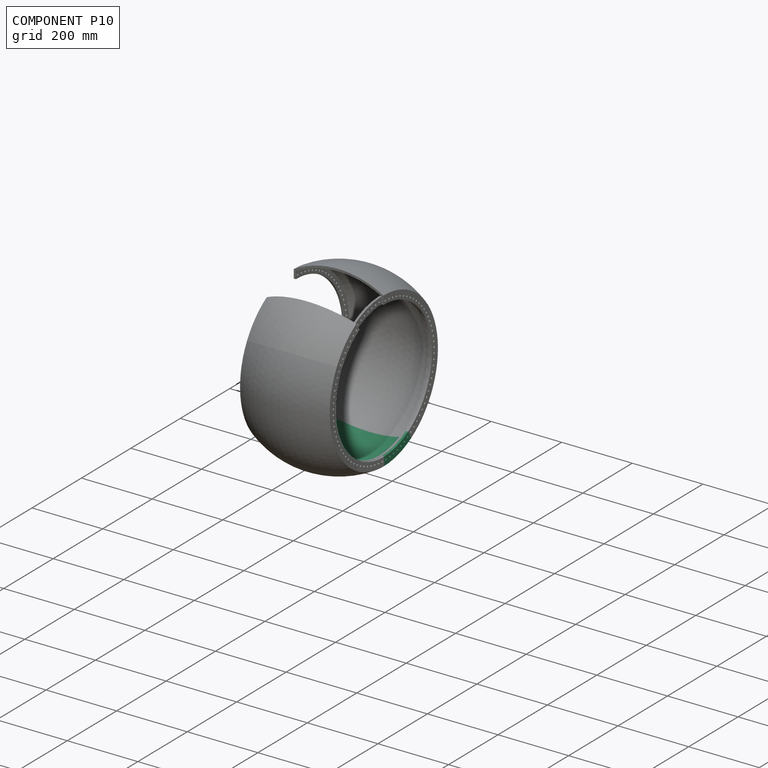
[diagram: component P10 — assembled]
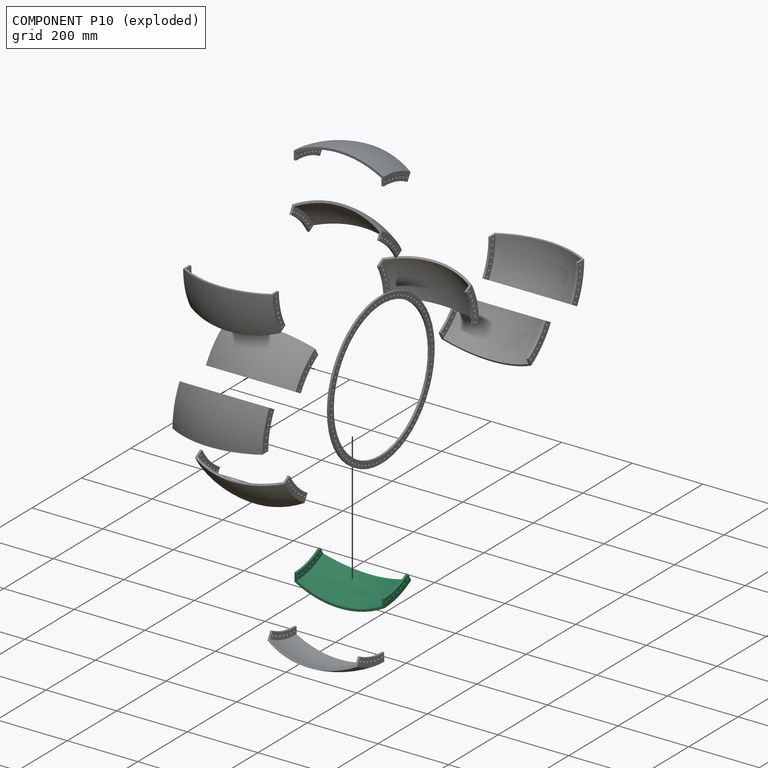
[diagram: component P10 — exploded]
COMPONENT P10 — same part as P0 (CADFS 00161216); its construction recipe is shown at P0.
Held by: FASTENED mate "Fastened 5" to P8; FASTENED mate "Fastened 6" to P6.
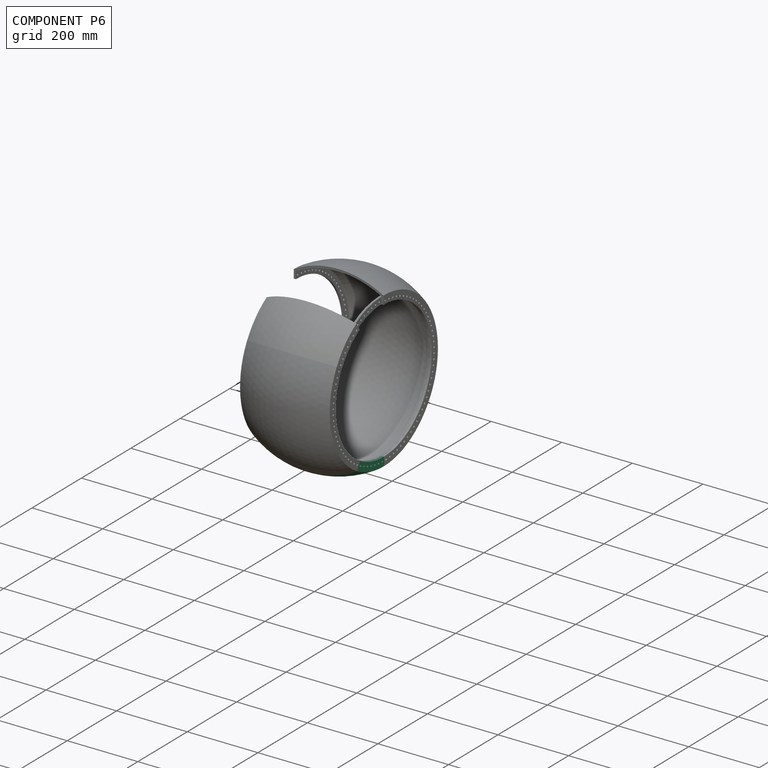
[diagram: component P6 — assembled]
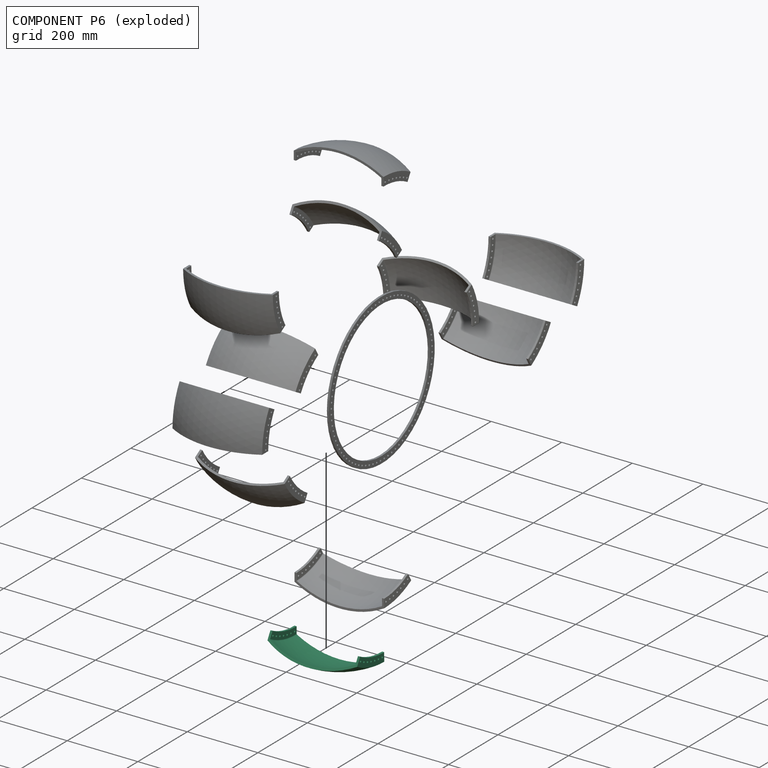
[diagram: component P6 — exploded]
COMPONENT P6 — same part as P0 (CADFS 00161216); its construction recipe is shown at P0.
Held by: FASTENED mate "Fastened 7" to P5; FASTENED mate "Fastened 6" to P10.
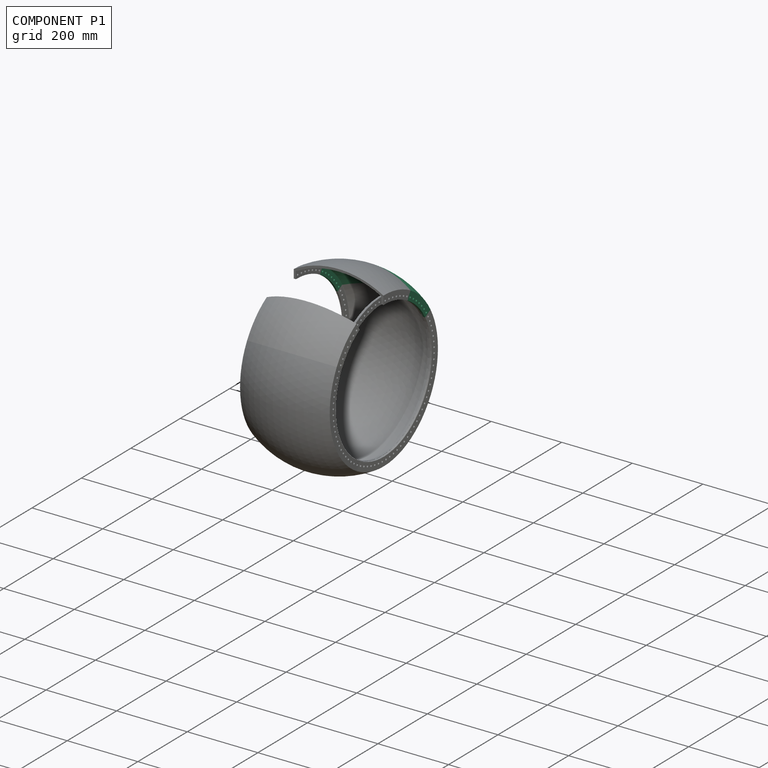
[diagram: component P1 — assembled]
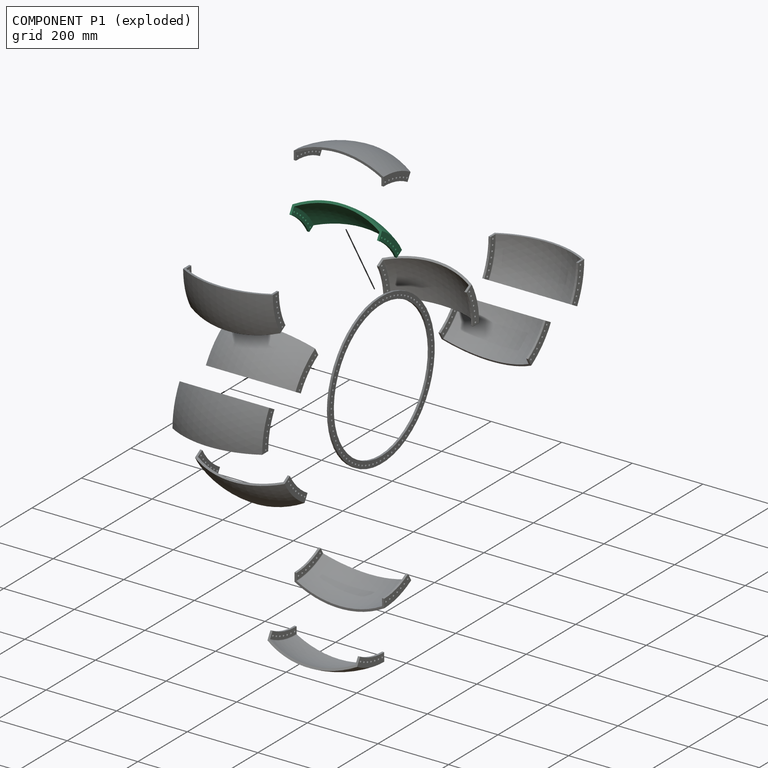
[diagram: component P1 — exploded]
COMPONENT P1 — same part as P0 (CADFS 00161216); its construction recipe is shown at P0.
Held by: FASTENED mate "Fastened 2" to P0; FASTENED mate "Fastened 3" to P9.
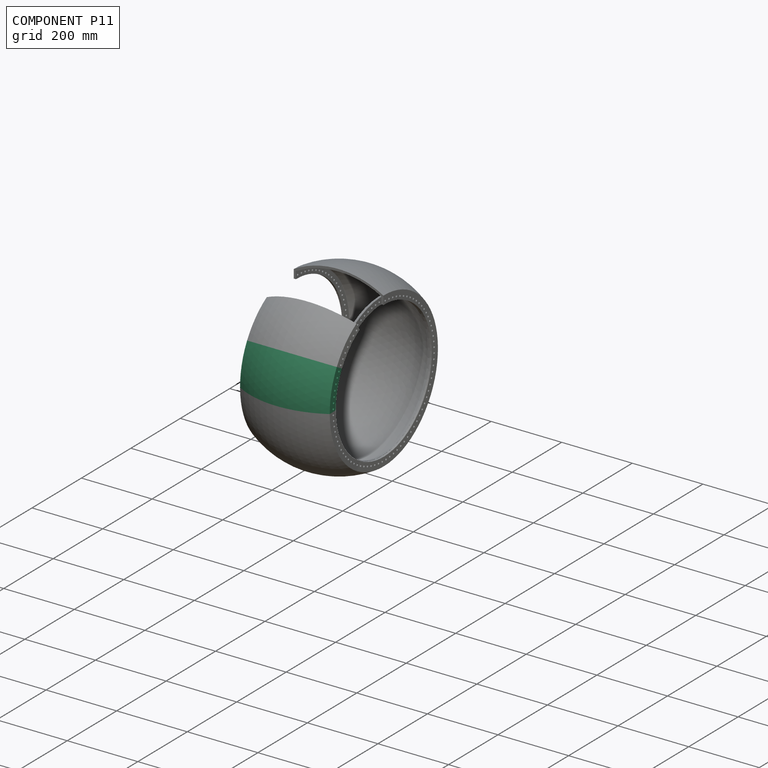
[diagram: component P11 — assembled]
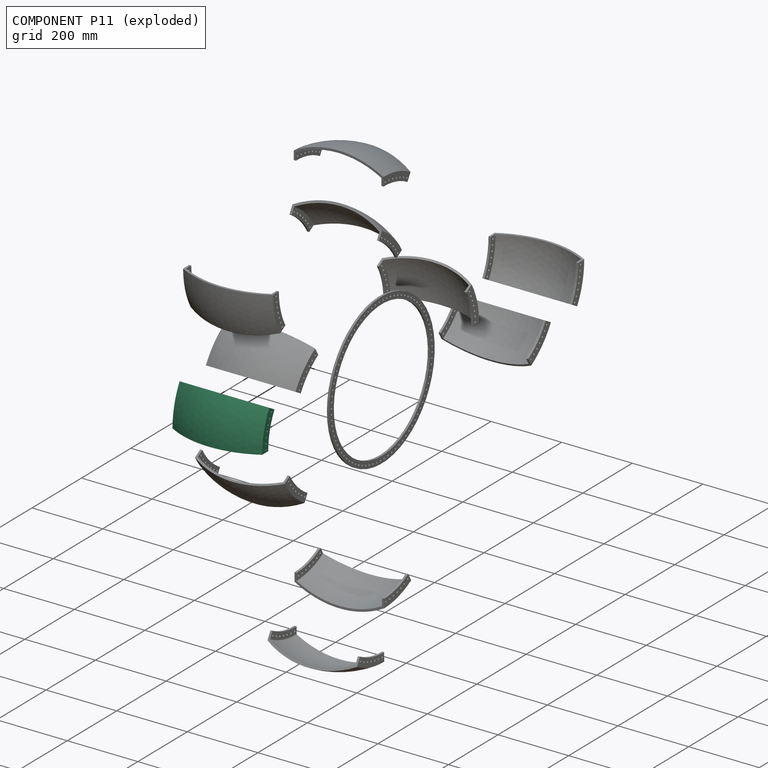
[diagram: component P11 — exploded]
COMPONENT P11 — same part as P0 (CADFS 00161216); its construction recipe is shown at P0.
Held by: FASTENED mate "Fastened 9" to P3; FASTENED mate "Fastened 10" to P4.
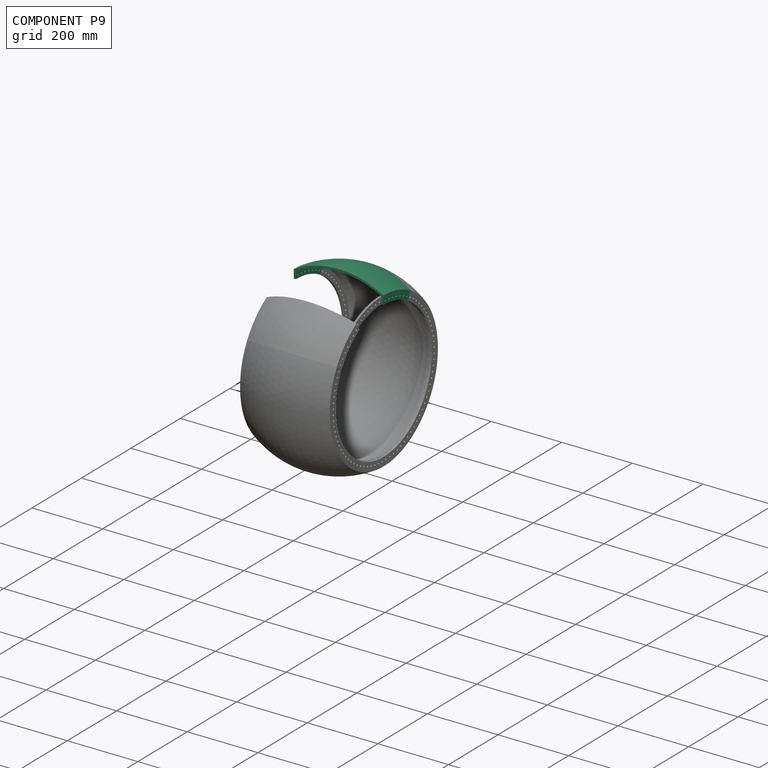
[diagram: component P9 — assembled]
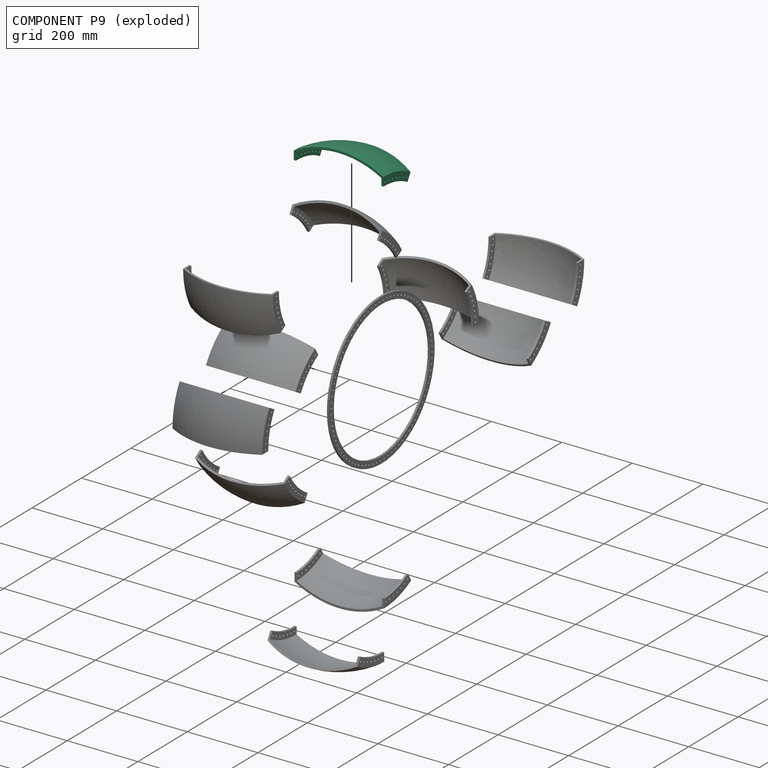
[diagram: component P9 — exploded]
COMPONENT P9 — same part as P0 (CADFS 00161216); its construction recipe is shown at P0.
Held by: FASTENED mate "Fastened 3" to P1.
PROVENANCE & LICENSES
Assembly (occurrences, transforms, mates, per-part STEP geometry): AutoMate dataset, Zenodo record 7776208, CC0.
Construction recipes: CADFS (HuggingFace VladPyatov/CADFS, CC-BY-4.0, layered over the ABC dataset), FeatureScript reconstruction programs keyed by ABC model id.
Join: ABC meta listings map ABC model id -> Onshape documentId; within a shared document, parts are matched by geometric signature (bounding-box dims + volume at 0.1% relative tolerance, exact B-rep face/solid counts).
Verification: 12 of this assembly's 12 components carry a recipe attachment, and every attachment is mesh-verified: the CADFS STEP and the AutoMate member STEP were compared as meshes in their shared local frame (symmetric sampled-point-to-mesh distance); worst across the 12 attachments: below the mesh-comparison resolution (tessellation chordal tolerance ~0.906 mm) on a 604 mm part.
Renders: orthographic iso camera (az 35 / el 25); the floor grid conveys scale (grid pitch printed in each image; no ruler). In the exploded view each component is displaced by its stored offset vector: the offsets alone carry the explosion direction (mate normal/axis signs are not orientation cues and do not encode it), and separation distances are assigned per mate-chain, not proportionally to assembly-order depth.
